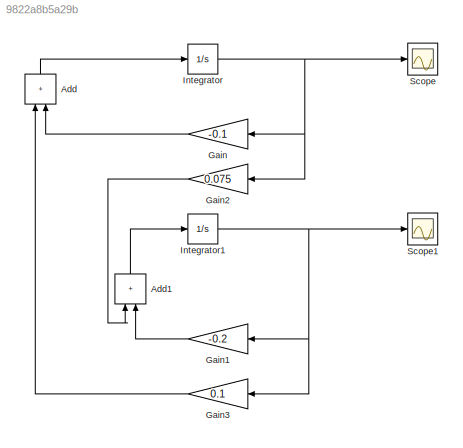
MODEL slx_9822a8b5a29b
KIND model
CONFIG AbsTol = auto
CONFIG EnableMultiTasking = off
CONFIG FixedStep = auto
CONFIG MaxStep = auto
CONFIG MinStep = auto
CONFIG RelTol = 1e-3
CONFIG SampleTimeConstraint = Unconstrained
CONFIG SolverName = VariableStepAuto
CONFIG StartTime = 0.0
CONFIG StopTime = 10.0
BLOCK [Sum] Add
  IconShape = rectangular
  NameLocation = right
BLOCK [Sum] Add1
  IconShape = rectangular
  NameLocation = right
BLOCK [Gain] Gain
  Gain = -0.1
BLOCK [Gain] Gain1
  Gain = -0.2
BLOCK [Gain] Gain2
  Gain = 0.075
BLOCK [Gain] Gain3
  Gain = 0.1
BLOCK [Integrator] Integrator
  InitialCondition = -17
BLOCK [Integrator] Integrator1
  InitialCondition = -21
BLOCK [Scope] Scope
  Floating = off
  NumInputPorts = 1
  ScopeSpecificationString = Simulink.scopes.TimeScopeBlockCfg('CurrentConfiguration', extmgr.ConfigurationSet(extmgr.Configuration('Core','General UI',true),extmgr.Configuration('Core','Source UI',true),extmgr.Configuration('Sources','WiredSimulink',true),extmgr.Configuration('Visuals','Time Domain',true,'SerializedDisplays',{struct('MinYLimReal','-17.73449','MaxYLimReal','-13.12818','YLabelReal','','MinYLimMag','0.00000','M...<+1495ch>
BLOCK [Scope] Scope1
  Floating = off
  NumInputPorts = 1
  ScopeSpecificationString = Simulink.scopes.TimeScopeBlockCfg('CurrentConfiguration', extmgr.ConfigurationSet(extmgr.Configuration('Core','General UI',true),extmgr.Configuration('Core','Source UI',true),extmgr.Configuration('Sources','WiredSimulink',true,'DataLoggingVariableName','ScopeData1'),extmgr.Configuration('Visuals','Time Domain',true,'SerializedDisplays',{struct('MinYLimReal','-22.64744','MaxYLimReal','-6.17302','YL...<+1546ch>
LINE Add1:1 -> Integrator1:1
LINE Add:1 -> Integrator:1
LINE Gain1:1 -> Add1:2
LINE Gain2:1 -> Add1:1
LINE Gain3:1 -> Add:1
LINE Gain:1 -> Add:2
NET Integrator1:1 -> Gain1:1, Gain3:1, Scope1:1
NET Integrator:1 -> Gain2:1, Gain:1, Scope:1
note: NET lines group one-source signal fan-out (src -> all destinations, sorted); 1:1 wires keep LINE
